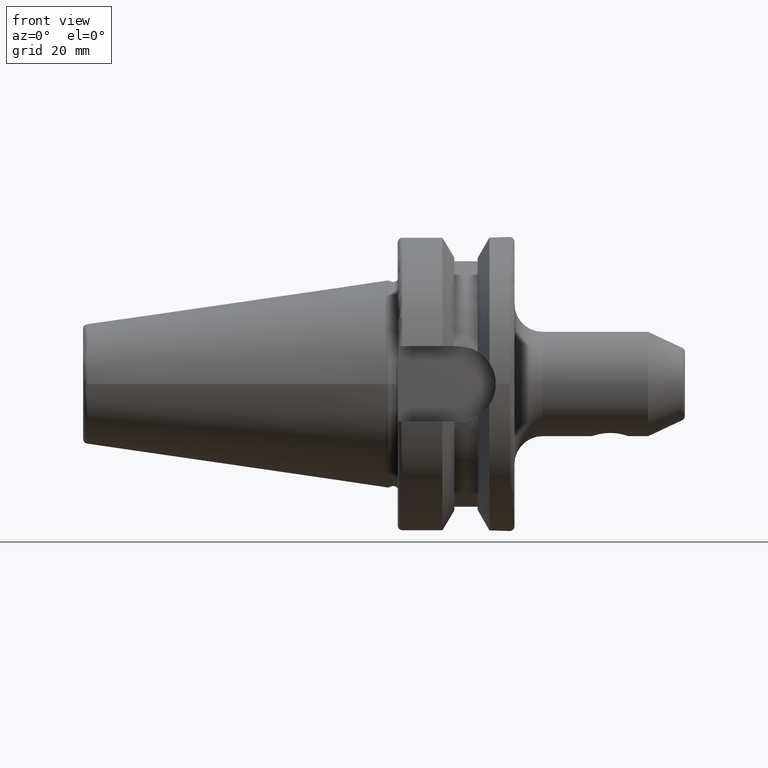
[diagram: clean part render]
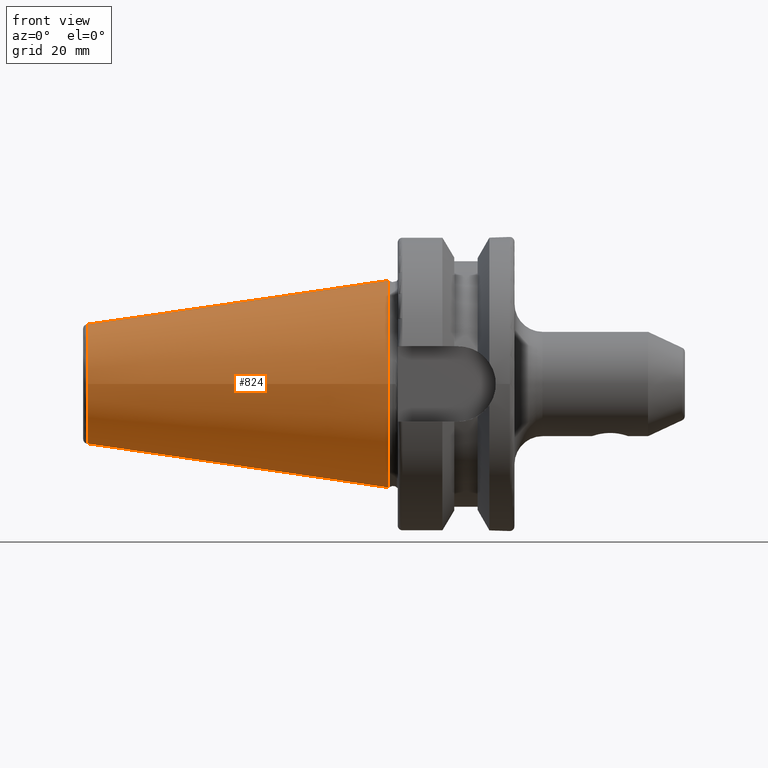
[diagram: same view with one face highlighted and labeled with its STEP entity id]
A machine part, front view. The second image highlights one B-rep face of the part: STEP entity #824.
In plain terms, the highlighted conical surface has half-angle 8.297 deg.
Its self-contained STEP definition (entity closure, byte-faithful):
#40=CONICAL_SURFACE('',#929,17.5186442890469,0.144812498238939);
#89=CIRCLE('',#925,12.8122885780937);
#90=CIRCLE('',#926,12.8122885780937);
#93=CIRCLE('',#930,22.225);
#159=FACE_OUTER_BOUND('',#212,.T.);
#212=EDGE_LOOP('',(#711,#712,#713,#714,#715));
#292=LINE('',#1699,#338);
#338=VECTOR('',#1141,17.5186442890469);
#409=VERTEX_POINT('',#1689);
#410=VERTEX_POINT('',#1690);
#412=VERTEX_POINT('',#1697);
#516=EDGE_CURVE('',#409,#410,#89,.T.);
#517=EDGE_CURVE('',#410,#409,#90,.T.);
#520=EDGE_CURVE('',#412,#412,#93,.T.);
#521=EDGE_CURVE('',#412,#409,#292,.T.);
#711=ORIENTED_EDGE('',*,*,#520,.F.);
#712=ORIENTED_EDGE('',*,*,#521,.T.);
#713=ORIENTED_EDGE('',*,*,#516,.T.);
#714=ORIENTED_EDGE('',*,*,#517,.T.);
#715=ORIENTED_EDGE('',*,*,#521,.F.);
#824=ADVANCED_FACE('',(#159),#40,.T.);
#925=AXIS2_PLACEMENT_3D('',#1691,#1129,#1130);
#926=AXIS2_PLACEMENT_3D('',#1692,#1131,#1132);
#929=AXIS2_PLACEMENT_3D('',#1696,#1137,#1138);
#930=AXIS2_PLACEMENT_3D('',#1698,#1139,#1140);
#1129=DIRECTION('center_axis',(1.,0.,0.));
#1130=DIRECTION('ref_axis',(0.,0.,-1.));
#1131=DIRECTION('center_axis',(1.,0.,0.));
#1132=DIRECTION('ref_axis',(0.,0.,-1.));
#1137=DIRECTION('center_axis',(1.,0.,0.));
#1138=DIRECTION('ref_axis',(0.,1.,0.));
#1139=DIRECTION('center_axis',(1.,0.,0.));
#1140=DIRECTION('ref_axis',(0.,0.,-1.));
#1141=DIRECTION('',(-0.989532981063282,0.144306893071729,1.76724974695192E-17));
#1689=CARTESIAN_POINT('',(-64.5443068930717,-12.8122885780937,-1.56905281969147E-15));
#1690=CARTESIAN_POINT('',(-64.5443068930717,-1.56905281969147E-15,12.8122885780937));
#1691=CARTESIAN_POINT('Origin',(-64.5443068930717,0.,0.));
#1692=CARTESIAN_POINT('Origin',(-64.5443068930717,0.,0.));
#1696=CARTESIAN_POINT('Origin',(-32.2721534465359,0.,0.));
#1697=CARTESIAN_POINT('',(4.44089209850063E-15,-22.225,-2.72177751110499E-15));
#1698=CARTESIAN_POINT('Origin',(0.,0.,0.));
#1699=CARTESIAN_POINT('',(-32.2721534465359,-17.5186442890469,-2.14541516539823E-15));